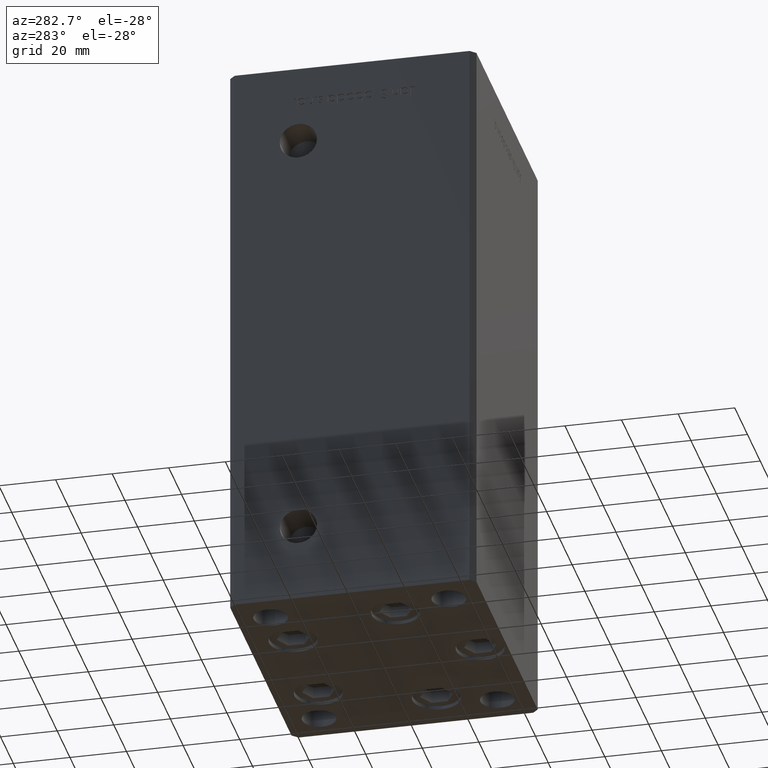
[diagram: clean part render]
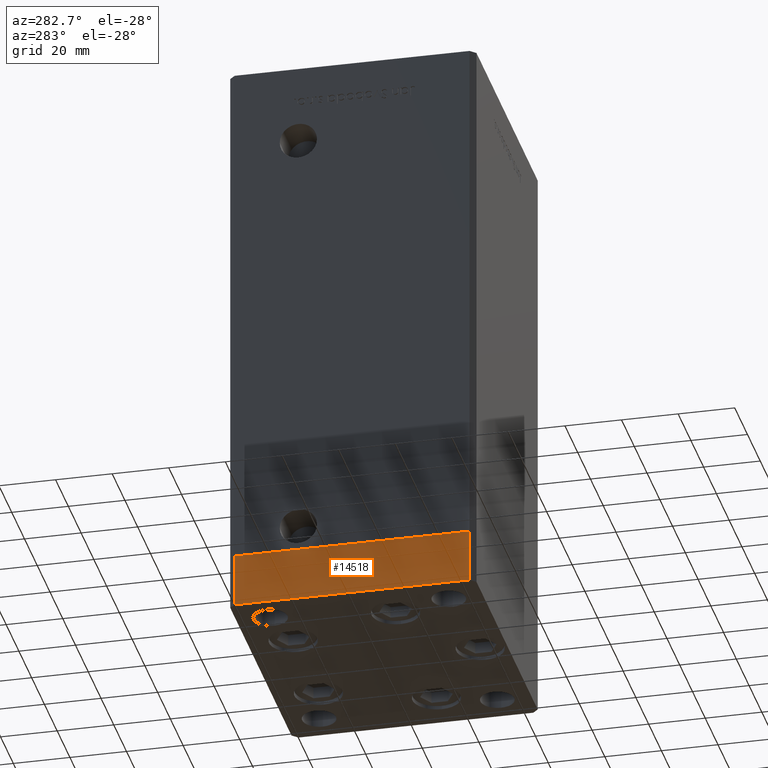
[diagram: same view with one face highlighted and labeled with its STEP entity id]
A machine part, auxiliary view. The second image highlights one B-rep face of the part: STEP entity #14518.
In plain terms, the highlighted planar face has unit normal (-1, 0, 0).
Its self-contained STEP definition (entity closure, byte-faithful):
#942 = CARTESIAN_POINT ( 'NONE',  ( 50.00000000000000000, -41.49999999999999289, -19.00000000000000000 ) ) ;
#1168 = EDGE_CURVE ( 'NONE', #18814, #47228, #15029, .T. ) ;
#2365 = CARTESIAN_POINT ( 'NONE',  ( 49.99999999999992184, 41.49999999999998579, -19.00000000000000000 ) ) ;
#3375 = EDGE_CURVE ( 'NONE', #6477, #21477, #12751, .T. ) ;
#5178 = VECTOR ( 'NONE', #30037, 1000.000000000000000 ) ;
#5774 = VECTOR ( 'NONE', #19865, 1000.000000000000000 ) ;
#6477 = VERTEX_POINT ( 'NONE', #46995 ) ;
#7587 = EDGE_CURVE ( 'NONE', #21477, #47228, #16171, .T. ) ;
#9515 = ORIENTED_EDGE ( 'NONE', *, *, #3375, .T. ) ;
#9678 = CARTESIAN_POINT ( 'NONE',  ( 49.99999999999992184, 41.49999999999998579, 0.000000000000000000 ) ) ;
#12595 = ORIENTED_EDGE ( 'NONE', *, *, #1168, .F. ) ;
#12704 = AXIS2_PLACEMENT_3D ( 'NONE', #48828, #45399, #40944 ) ;
#12751 = LINE ( 'NONE', #942, #46737 ) ;
#13122 = PLANE ( 'NONE',  #12704 ) ;
#14019 = LINE ( 'NONE', #22163, #5178 ) ;
#14518 = ADVANCED_FACE ( 'NONE', ( #24686 ), #13122, .T. ) ;
#14813 = EDGE_CURVE ( 'NONE', #6477, #18814, #14019, .T. ) ;
#15029 = LINE ( 'NONE', #47054, #24909 ) ;
#16171 = LINE ( 'NONE', #40301, #5774 ) ;
#18446 = DIRECTION ( 'NONE',  ( -1.003213576468515193E-15, 1.000000000000000000, 0.000000000000000000 ) ) ;
#18814 = VERTEX_POINT ( 'NONE', #23730 ) ;
#19865 = DIRECTION ( 'NONE',  ( 0.000000000000000000, 0.000000000000000000, 1.000000000000000000 ) ) ;
#21477 = VERTEX_POINT ( 'NONE', #2365 ) ;
#22163 = CARTESIAN_POINT ( 'NONE',  ( 50.00000000000000000, -41.49999999999999289, -19.00000000000000000 ) ) ;
#23730 = CARTESIAN_POINT ( 'NONE',  ( 50.00000000000000000, -41.49999999999999289, 0.000000000000000000 ) ) ;
#24686 = FACE_OUTER_BOUND ( 'NONE', #45151, .T. ) ;
#24909 = VECTOR ( 'NONE', #18446, 1000.000000000000000 ) ;
#28061 = ORIENTED_EDGE ( 'NONE', *, *, #7587, .T. ) ;
#30037 = DIRECTION ( 'NONE',  ( 0.000000000000000000, 0.000000000000000000, 1.000000000000000000 ) ) ;
#40301 = CARTESIAN_POINT ( 'NONE',  ( 49.99999999999992184, 41.49999999999998579, -19.00000000000000000 ) ) ;
#40944 = DIRECTION ( 'NONE',  ( -1.003213576468515193E-15, 1.000000000000000000, 0.000000000000000000 ) ) ;
#45151 = EDGE_LOOP ( 'NONE', ( #12595, #50575, #9515, #28061 ) ) ;
#45278 = DIRECTION ( 'NONE',  ( -1.003213576468515193E-15, 1.000000000000000000, 0.000000000000000000 ) ) ;
#45399 = DIRECTION ( 'NONE',  ( 1.000000000000000000, 1.003213576468515193E-15, -0.000000000000000000 ) ) ;
#46737 = VECTOR ( 'NONE', #45278, 1000.000000000000000 ) ;
#46995 = CARTESIAN_POINT ( 'NONE',  ( 50.00000000000000000, -41.49999999999999289, -19.00000000000000000 ) ) ;
#47054 = CARTESIAN_POINT ( 'NONE',  ( 50.00000000000000000, -41.49999999999999289, 0.000000000000000000 ) ) ;
#47228 = VERTEX_POINT ( 'NONE', #9678 ) ;
#48828 = CARTESIAN_POINT ( 'NONE',  ( 50.00000000000000000, -41.49999999999999289, -19.00000000000000000 ) ) ;
#50575 = ORIENTED_EDGE ( 'NONE', *, *, #14813, .F. ) ;